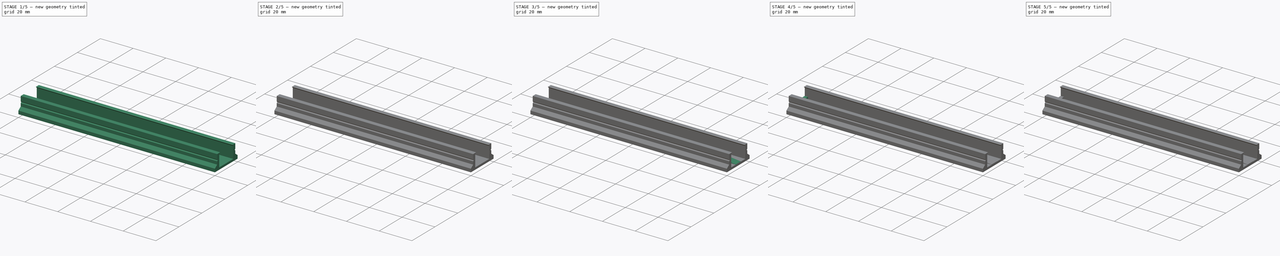
[diagram: build sequence overview — one tinted view per stage of 5, left to right]
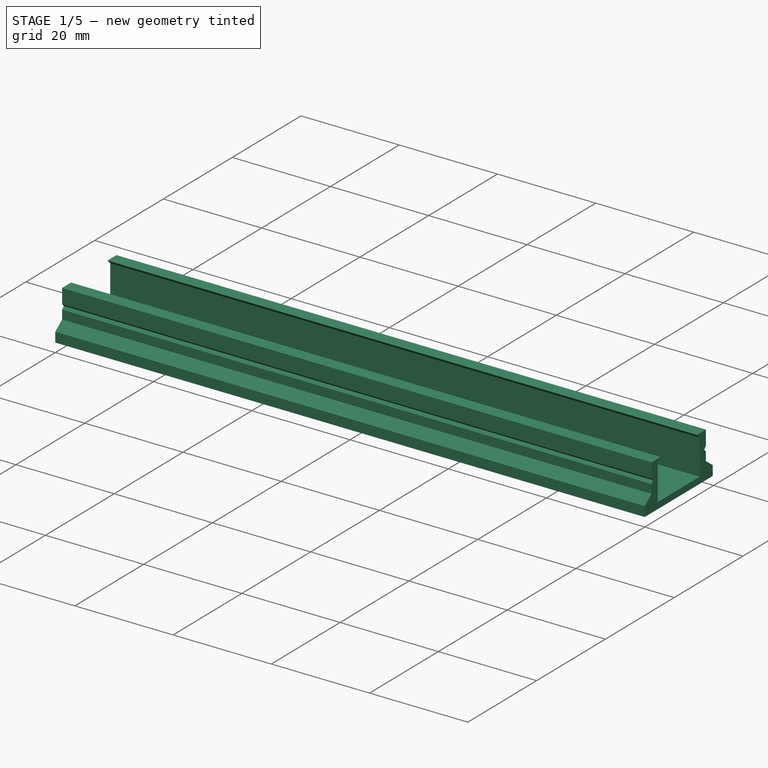
[diagram: stage 1 of 5 — iso view after this stage's code; geometry added in this stage tinted green]
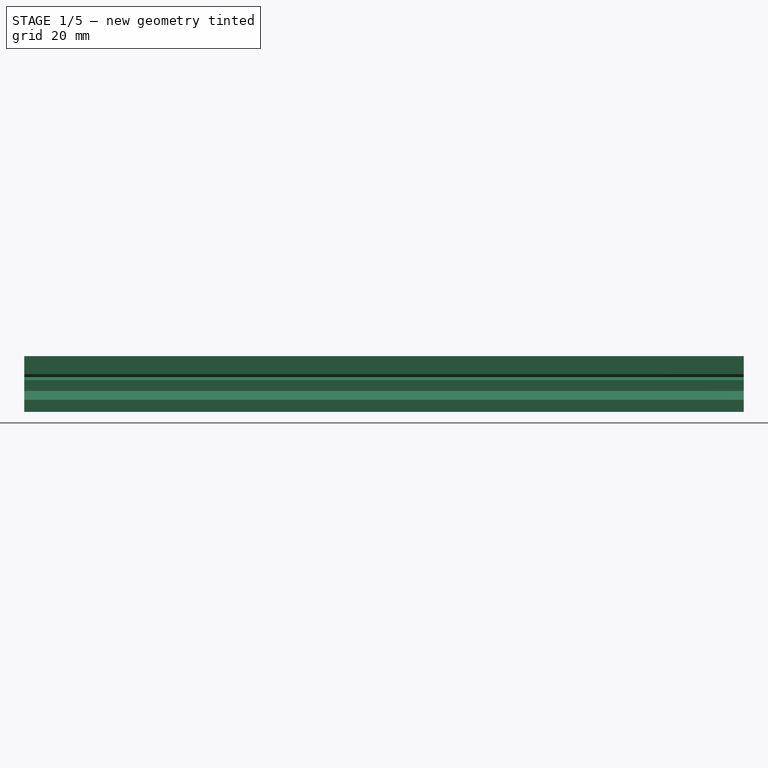
[diagram: stage 1 of 5 — front view after this stage's code; geometry added in this stage tinted green]
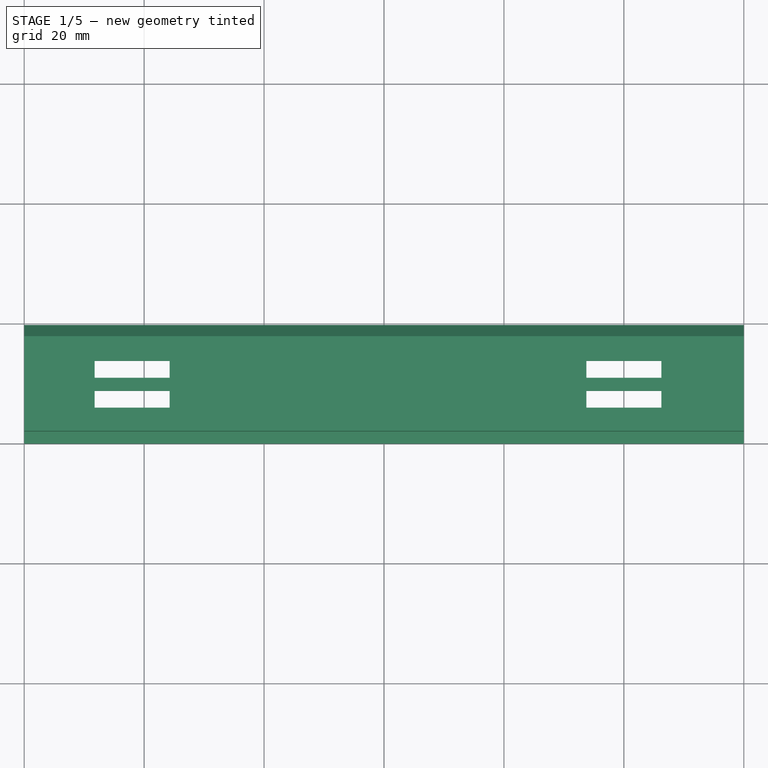
[diagram: stage 1 of 5 — top view after this stage's code; geometry added in this stage tinted green]
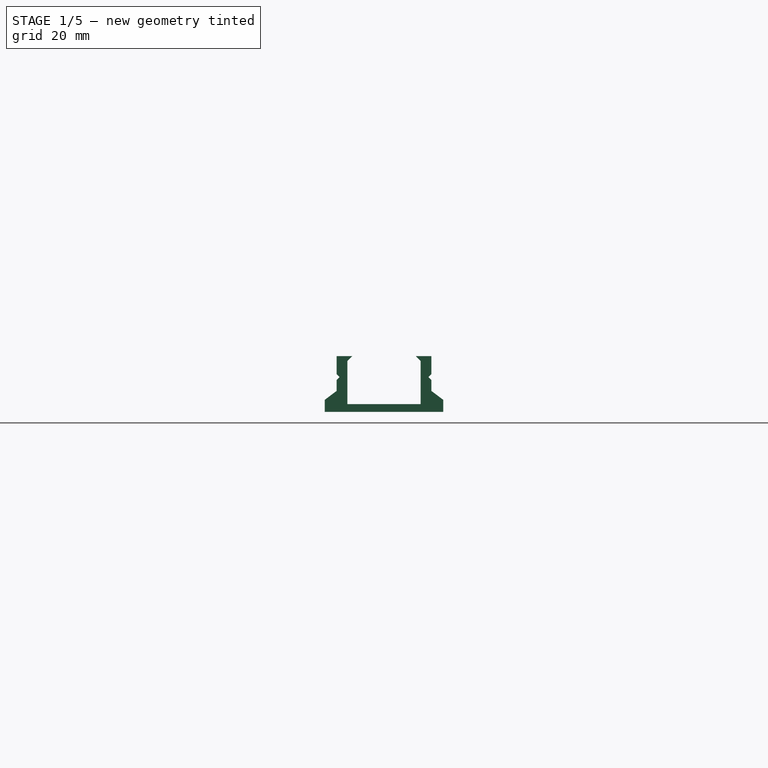
[diagram: stage 1 of 5 — right view after this stage's code; geometry added in this stage tinted green]
FCSTD DOCUMENT  (FreeCAD 1.0R39109 (Git))
Label: Menlu_body_12mm
License: All rights reserved
LicenseURL: https://en.wikipedia.org/wiki/All_rights_reserved
objects: Sketcher::SketchObject×13, PartDesign::Pad×8, PartDesign::Pocket×6, PartDesign::LinearPattern×2, PartDesign::Chamfer×2, PartDesign::Mirrored×1, PartDesign::AdditiveLoft×1, PartDesign::Body×1
note: 84 computed .brp shape members not serialized (recipe doc carries the construction recipe); baked Part::Feature solids carry a one-line shape summary decoded from their .brp

FEATURE [Sketcher::SketchObject] Sketch
  ArcFitTolerance = 1e-06
  AttachmentSupport = -> [YZ_Plane]
  FullyConstrained = true
  MakeInternals = false
  MapMode = 5
  Placement = pos=(0,0,0) rot=(0.57735,0.57735,0.57735;2.0944rad)
  sketch-geometry (12):
    g0: LineSegment StartX=0 StartY=0 StartZ=0 EndX=0 EndY=2 EndZ=0
    g1: LineSegment StartX=0 StartY=2 StartZ=0 EndX=1.99057 EndY=3.5 EndZ=0
    g2: LineSegment StartX=1.99057 StartY=3.5 StartZ=0 EndX=1.99057 EndY=5.3 EndZ=0
    g3: LineSegment StartX=1.99057 StartY=5.3 StartZ=0 EndX=2.49057 EndY=5.8 EndZ=0
    g4: LineSegment StartX=2.49057 StartY=5.8 StartZ=0 EndX=1.99057 EndY=6.3 EndZ=0
    g5: LineSegment StartX=1.99057 StartY=6.3 StartZ=0 EndX=1.99057 EndY=9.3 EndZ=0
    g6: LineSegment StartX=1.99057 StartY=9.3 StartZ=0 EndX=4.59057 EndY=9.3 EndZ=0
    g7: LineSegment StartX=4.59057 StartY=9.3 StartZ=0 EndX=3.79057 EndY=8.5 EndZ=0
    g8: LineSegment StartX=3.79057 StartY=8.5 StartZ=0 EndX=3.79057 EndY=1.3 EndZ=0
    g9: LineSegment StartX=3.79057 StartY=1.3 StartZ=0 EndX=9.89057 EndY=1.3 EndZ=0
    g10: LineSegment StartX=0 StartY=0 StartZ=0 EndX=9.89057 EndY=0 EndZ=0
    g11: LineSegment StartX=9.89057 StartY=1.3 StartZ=0 EndX=9.89057 EndY=0 EndZ=0
  constraints (34):
    c: Coincident(g-1,g0)
    c: PointOnObject(g0,g-2)
    c: Coincident(g0,g1)
    c: Coincident(g1,g2)
    c: Vertical(g2)
    c: Coincident(g2,g3)
    c: Coincident(g3,g4)
    c: Coincident(g4,g5)
    c: Coincident(g5,g6)
    c: Horizontal(g6)
    c: Coincident(g6,g7)
    c: Coincident(g7,g8)
    c: Vertical(g8)
    c: Coincident(g8,g9)
    c: Horizontal(g9)
    c: Coincident(g0,g10)
    c: PointOnObject(g10,g-1)
    c: Vertical(g11)
    c: Coincident(g11,g9)
    c: Coincident(g11,g10)
    c: Distance(g0,g0) = 2
    c: DistanceY(g0,g1) = 1.5
    c: DistanceY(g2,g2) = 1.8
    c: DistanceY(g2,g3) = 0.5
    c: DistanceX(g2,g3) = 0.5
    c: DistanceY(g3,g4) = 0.5
    c: Tangent(g5,g2)
    c: DistanceY(g5,g5) = 3
    c: Distance(g8,g5) = 1.8
    c: Distance(g6,g8) = 0.8
    c: Distance(g7,g6) = 0.8
    c: Distance(g10,g9) = 1.3
    c: DistanceX(g9,g9) = 6.1
    c: Angle(g1,g2) = 0.925025
FEATURE [PartDesign::Pad] Pad
  Direction = (1,0,0)
  Length = 120
  Length2 = 10
  Placement = pos=(0,0,0) rot=(1,1,1;2.0944rad)
  Profile = -> Sketch
  ReferenceAxis = -> Sketch [N_Axis]
  Refine = true
  Suppressed = false
  Type = 0
FEATURE [PartDesign::Mirrored] Mirrored
  BaseFeature = -> Pad
  MirrorPlane = -> Pad [Face11]
  Placement = pos=(0,0,0) rot=(1,1,1;2.0944rad)
  Refine = true
  Suppressed = false
  TransformMode = 1
FEATURE [Sketcher::SketchObject] Sketch001
  ArcFitTolerance = 1e-06
  AttachmentSupport = -> [Mirrored]
  ExternalGeometry = -> [Mirrored]
  FullyConstrained = true
  MakeInternals = false
  MapMode = 5
  Placement = pos=(0,0,0) rot=(0.707107,0.707107,0;3.14159rad)
  sketch-geometry (32):
    g0: LineSegment StartX=1 StartY=24.25 StartZ=0 EndX=1 EndY=11.75 EndZ=0
    g1: LineSegment StartX=1 StartY=11.75 StartZ=0 EndX=3.8 EndY=11.75 EndZ=0
    g2: LineSegment StartX=3.8 StartY=11.75 StartZ=0 EndX=3.8 EndY=24.25 EndZ=0
    g3: LineSegment StartX=3.8 StartY=24.25 StartZ=0 EndX=1 EndY=24.25 EndZ=0
    g4: LineSegment StartX=6 StartY=24.25 StartZ=0 EndX=6 EndY=11.75 EndZ=0
    g5: LineSegment StartX=6 StartY=11.75 StartZ=0 EndX=8.8 EndY=11.75 EndZ=0
    g6: LineSegment StartX=8.8 StartY=11.75 StartZ=0 EndX=8.8 EndY=24.25 EndZ=0
    g7: LineSegment StartX=8.8 StartY=24.25 StartZ=0 EndX=6 EndY=24.25 EndZ=0
    g8: LineSegment StartX=11 StartY=11.75 StartZ=0 EndX=13.8 EndY=11.75 EndZ=0
    g9: LineSegment StartX=13.8 StartY=11.75 StartZ=0 EndX=13.8 EndY=24.25 EndZ=0
    g10: LineSegment StartX=13.8 StartY=24.25 StartZ=0 EndX=11 EndY=24.25 EndZ=0
    g11: LineSegment StartX=11 StartY=24.25 StartZ=0 EndX=11 EndY=11.75 EndZ=0
    g12: LineSegment StartX=1 StartY=106.25 StartZ=0 EndX=1 EndY=93.75 EndZ=0
    g13: LineSegment StartX=1 StartY=93.75 StartZ=0 EndX=3.75 EndY=93.75 EndZ=0
    g14: LineSegment StartX=3.75 StartY=93.75 StartZ=0 EndX=3.75 EndY=106.25 EndZ=0
    g15: LineSegment StartX=3.75 StartY=106.25 StartZ=0 EndX=1 EndY=106.25 EndZ=0
    g16: LineSegment StartX=6 StartY=106.25 StartZ=0 EndX=6 EndY=93.75 EndZ=0
    g17: LineSegment StartX=6 StartY=93.75 StartZ=0 EndX=8.8 EndY=93.75 EndZ=0
    g18: LineSegment StartX=8.8 StartY=93.75 StartZ=0 EndX=8.8 EndY=106.25 EndZ=0
    g19: LineSegment StartX=8.8 StartY=106.25 StartZ=0 EndX=6 EndY=106.25 EndZ=0
    g20: LineSegment StartX=11 StartY=93.75 StartZ=0 EndX=13.8 EndY=93.75 EndZ=0
    g21: LineSegment StartX=13.8 StartY=93.75 StartZ=0 EndX=13.8 EndY=106.25 EndZ=0
    g22: LineSegment StartX=13.8 StartY=106.25 StartZ=0 EndX=11 EndY=106.25 EndZ=0
    g23: LineSegment StartX=11 StartY=106.25 StartZ=0 EndX=11 EndY=93.75 EndZ=0
    g24: LineSegment StartX=16 StartY=11.75 StartZ=0 EndX=18.8 EndY=11.75 EndZ=0
    g25: LineSegment StartX=18.8 StartY=11.75 StartZ=0 EndX=18.8 EndY=24.25 EndZ=0
    g26: LineSegment StartX=18.8 StartY=24.25 StartZ=0 EndX=16 EndY=24.25 EndZ=0
    g27: LineSegment StartX=16 StartY=24.25 StartZ=0 EndX=16 EndY=11.75 EndZ=0
    g28: LineSegment StartX=16 StartY=93.75 StartZ=0 EndX=18.8 EndY=93.75 EndZ=0
    g29: LineSegment StartX=18.8 StartY=93.75 StartZ=0 EndX=18.8 EndY=106.25 EndZ=0
    g30: LineSegment StartX=18.8 StartY=106.25 StartZ=0 EndX=16 EndY=106.25 EndZ=0
    g31: LineSegment StartX=16 StartY=106.25 StartZ=0 EndX=16 EndY=93.75 EndZ=0
  constraints (81):
    c: Coincident(g0,g1)
    c: Coincident(g1,g2)
    c: Coincident(g2,g3)
    c: Coincident(g3,g0)
    c: Vertical(g0)
    c: Vertical(g2)
    c: Horizontal(g1)
    c: Horizontal(g3)
    c: Distance(g3,g3) = 2.8
    c: Distance(g0,g0) = 12.5
    c: Distance(g-1,g1) = 11.75
    c: Distance(g-2,g0) = 1
    c: Coincident(g4,g5)
    c: Coincident(g5,g6)
    c: Coincident(g6,g7)
    c: Coincident(g7,g4)
    c: Vertical(g4)
    c: Vertical(g6)
    c: Tangent(g7,g3)
    c: Tangent(g5,g1)
    c: Distance(g7,g7) = 2.8
    c: Distance(g4,g2) = 2.2
    c: Coincident(g8,g9)
    c: Coincident(g9,g10)
    c: Coincident(g10,g11)
    c: Coincident(g11,g8)
    c: Vertical(g9)
    c: Vertical(g11)
    c: Tangent(g10,g7)
    c: Tangent(g8,g5)
    c: DistanceX(g10,g10) = 2.8
    c: Distance(g11,g6) = 2.2
    c: Coincident(g12,g13)
    c: Coincident(g13,g14)
    c: Coincident(g14,g15)
    c: Coincident(g15,g12)
    c: Vertical(g14)
    c: Horizontal(g13)
    c: Horizontal(g15)
    c: Distance(g15,g15) = 2.75
    c: Distance(g12,g12) = 12.5
    c: Coincident(g16,g17)
    c: Coincident(g17,g18)
    c: Coincident(g18,g19)
    c: Coincident(g19,g16)
    c: Vertical(g16)
    c: Vertical(g18)
    c: Tangent(g19,g15)
    c: Tangent(g17,g13)
    c: Distance(g19,g19) = 2.8
    c: Distance(g16,g14) = 2.25
    c: Coincident(g20,g21)
    c: Coincident(g21,g22)
    c: Coincident(g22,g23)
    c: Coincident(g23,g20)
    c: Vertical(g21)
    c: Vertical(g23)
    c: Tangent(g22,g19)
    c: Tangent(g20,g17)
    c: DistanceX(g22,g22) = 2.8
    c: Distance(g23,g18) = 2.2
    c: Coincident(g24,g25)
    c: Coincident(g25,g26)
    c: Coincident(g26,g27)
    c: Coincident(g27,g24)
    c: Vertical(g25)
    c: Vertical(g27)
    c: Tangent(g24,g8)
    c: Tangent(g26,g10)
    c: DistanceX(g26,g26) = 2.8
    c: Distance(g9,g27) = 2.2
    c: Tangent(g12,g0)
    c: Distance(g13,g3) = 69.5
    c: Coincident(g28,g29)
    c: Coincident(g29,g30)
    c: Coincident(g30,g31)
    c: Coincident(g31,g28)
    c: Tangent(g28,g20)
    c: Tangent(g30,g22)
    c: Tangent(g31,g27)
    c: Tangent(g29,g25)
FEATURE [PartDesign::Pocket] Pocket
  BaseFeature = -> Mirrored
  Direction = (0,0,1)
  Length = 1.3
  Length2 = 5
  Placement = pos=(0,0,0) rot=(1,1,1;2.0944rad)
  Profile = -> Sketch001
  ReferenceAxis = -> Sketch001 [N_Axis]
  Refine = true
  Suppressed = false
  Type = 0
FEATURE [Sketcher::SketchObject] Sketch002
  ArcFitTolerance = 1e-06
  AttachmentSupport = -> [Pocket]
  ExternalGeometry = -> [Pocket]
  FullyConstrained = true
  MakeInternals = false
  MapMode = 5
  Placement = pos=(-3.5e-15,0,0) rot=(0.57735,0.57735,-0.57735;4.18879rad)
  sketch-geometry (8):
    g0: LineSegment StartX=18.1811 StartY=1.21e-14 StartZ=0 EndX=18.8811 EndY=-1 EndZ=0
    g1: LineSegment StartX=18.8811 StartY=-1 StartZ=0 EndX=18.5811 EndY=-1.3 EndZ=0
    g2: LineSegment StartX=18.5811 StartY=-1.3 StartZ=0 EndX=16.1811 EndY=-1.3 EndZ=0
    g3: LineSegment StartX=16.1811 StartY=-1.3 StartZ=0 EndX=15.8811 EndY=-1 EndZ=0
    g4: LineSegment StartX=15.8811 StartY=-1 StartZ=0 EndX=16.5811 EndY=1.11e-14 EndZ=0
    g5: LineSegment StartX=16.5811 StartY=1.11e-14 StartZ=0 EndX=18.1811 EndY=1.21e-14 EndZ=0
    g6: GeomPoint X=17.3811 Y=-1.3 Z=0
    g7: GeomPoint X=17.3811 Y=1.16e-14 Z=0
  constraints (19):
    c: Coincident(g0,g1)
    c: Coincident(g1,g2)
    c: Horizontal(g2)
    c: Coincident(g2,g3)
    c: Coincident(g3,g4)
    c: Coincident(g4,g5)
    c: Coincident(g5,g0)
    c: DistanceX(g5,g5) = 1.6
    c: Distance(g5,g2) = 1.3
    c: DistanceX(g3,g4) = 0.7
    c: DistanceY(g3,g4) = 1
    c: DistanceX(g2,g2) = 2.4
    c: Symmetric(g2,g2,g6)
    c: Symmetric(g5,g5,g7)
    c: Vertical(g6,g7)
    c: Horizontal(g0,g3)
    c: DistanceX(g0,g0) = 0.7
    c: Tangent(g5,g-4)
    c: Distance(g7,g-3) = 2.4
FEATURE [PartDesign::Pocket] Pocket001
  BaseFeature = -> Pocket
  Direction = (1,0,0)
  Length = 5
  Length2 = 5
  Placement = pos=(0,0,0) rot=(1,1,1;2.0944rad)
  Profile = -> Sketch002
  ReferenceAxis = -> Sketch002 [N_Axis]
  Refine = true
  Suppressed = false
  Type = 2
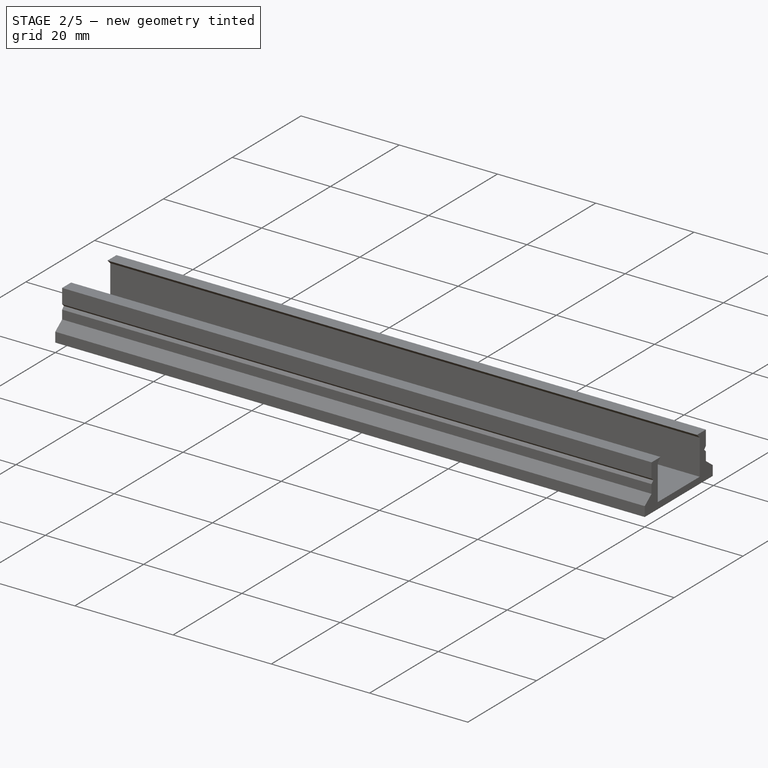
[diagram: stage 2 of 5 — iso view after this stage's code; geometry added in this stage tinted green]
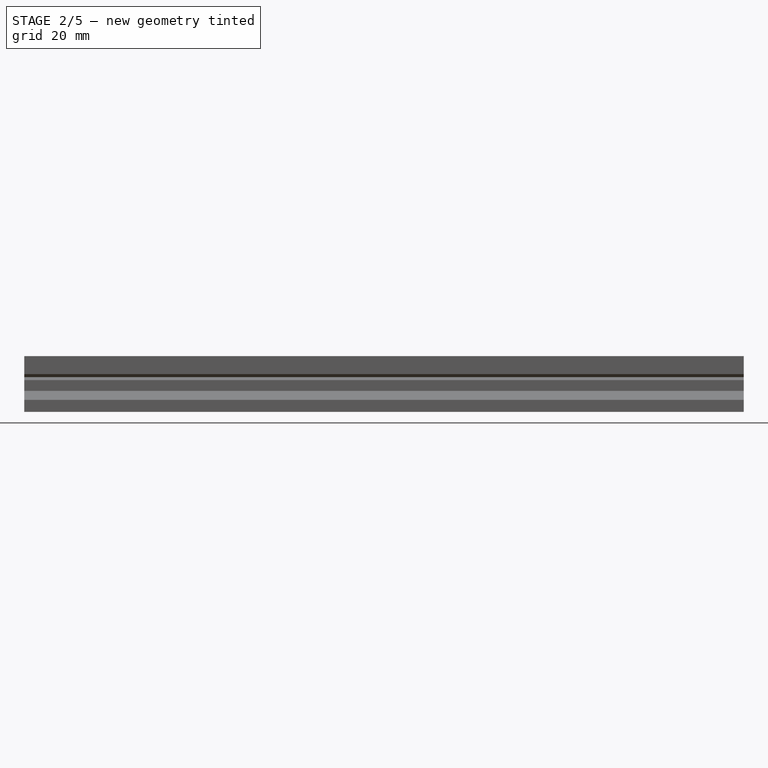
[diagram: stage 2 of 5 — front view after this stage's code; geometry added in this stage tinted green]
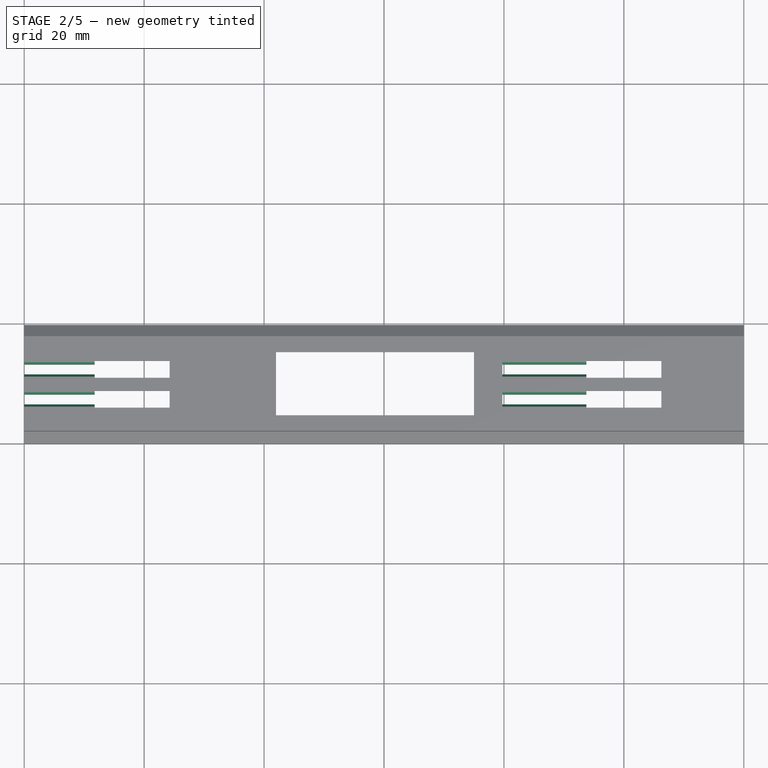
[diagram: stage 2 of 5 — top view after this stage's code; geometry added in this stage tinted green]
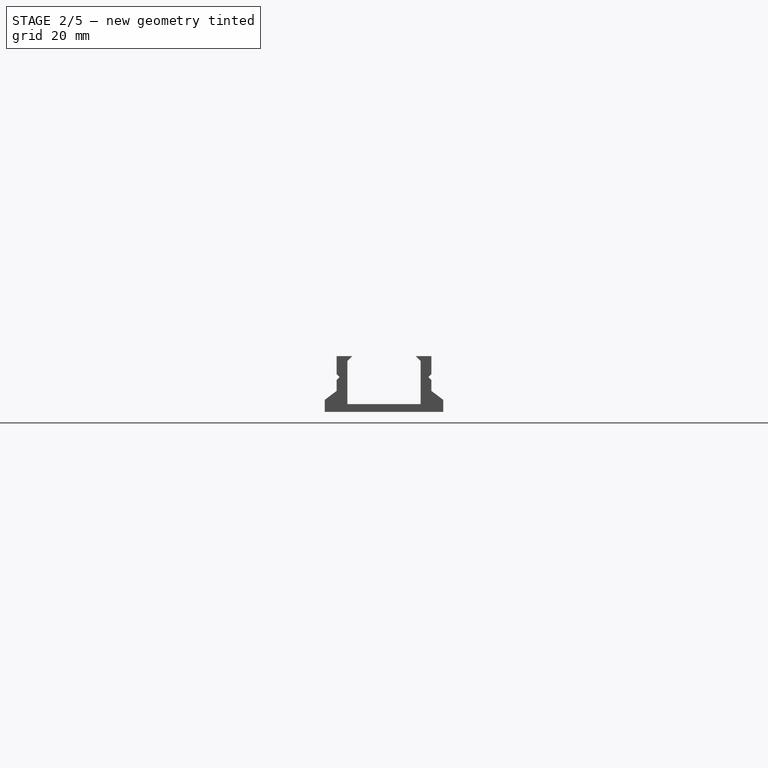
[diagram: stage 2 of 5 — right view after this stage's code; geometry added in this stage tinted green]
FEATURE [Sketcher::SketchObject] Sketch003
  ArcFitTolerance = 1e-06
  AttachmentOffset = pos=(0,0,0) rot=(1,0,0;3.14159rad)
  AttachmentSupport = -> [Pocket001]
  FullyConstrained = true
  MakeInternals = false
  MapMode = 5
  Placement = pos=(93.75,9.1e-13,4.16e-14) rot=(0.57735,0.57735,-0.57735;4.18879rad)
FEATURE [Sketcher::SketchObject] Sketch010
  ArcFitTolerance = 1e-06
  AttachmentSupport = -> [Pocket001]
  ExternalGeometry = -> [Sketch002]
  FullyConstrained = true
  MakeInternals = false
  MapMode = 5
  Placement = pos=(93.75,-5.174e-13,4.16e-14) rot=(0.57735,0.57735,0.57735;2.0944rad)
  sketch-geometry (6):
    g0: LineSegment StartX=15.8811 StartY=1 StartZ=0 EndX=16.5811 EndY=0 EndZ=0
    g1: LineSegment StartX=18.1811 StartY=0 StartZ=0 EndX=18.8811 EndY=1 EndZ=0
    g2: LineSegment StartX=18.5811 StartY=1.3 StartZ=0 EndX=16.1811 EndY=1.3 EndZ=0
    g3: LineSegment StartX=15.8811 StartY=1 StartZ=0 EndX=16.1811 EndY=1.3 EndZ=0
    g4: LineSegment StartX=18.5811 StartY=1.3 StartZ=0 EndX=18.8811 EndY=1 EndZ=0
    g5: LineSegment StartX=18.1811 StartY=0 StartZ=0 EndX=16.5811 EndY=0 EndZ=0
  constraints (12):
    c: Coincident(g0,g-8)
    c: Coincident(g0,g-4)
    c: Coincident(g1,g-5)
    c: Coincident(g1,g-6)
    c: Coincident(g2,g-7)
    c: Coincident(g2,g-8)
    c: Coincident(g3,g0)
    c: Coincident(g3,g-8)
    c: Coincident(g4,g2)
    c: Coincident(g4,g1)
    c: Coincident(g5,g-5)
    c: Coincident(g5,g-4)
FEATURE [PartDesign::Pocket] Pocket004
  BaseFeature = -> Pocket001
  Direction = (-1,5.4e-15,1e-16)
  Length = 14
  Length2 = 5
  Placement = pos=(0,0,0) rot=(1,1,1;2.0944rad)
  Profile = -> Sketch010
  ReferenceAxis = -> Sketch010 [N_Axis]
  Refine = true
  Suppressed = false
  Type = 0
FEATURE [PartDesign::LinearPattern] LinearPattern001
  BaseFeature = -> Pocket004
  Direction = -> Sketch010 [H_Axis]
  Length = 15
  Mode = 0
  Occurrences = 4
  Offset = 5
  Originals = -> [Pocket004]
  Placement = pos=(0,0,0) rot=(1,1,1;2.0944rad)
  Refine = true
  Reversed = true
  Suppressed = false
  TransformMode = 0
FEATURE [PartDesign::LinearPattern] LinearPattern
  BaseFeature = -> LinearPattern001
  Direction = -> Y_Axis
  Length = 15
  Mode = 0
  Occurrences = 4
  Offset = 5
  Originals = -> [Pocket001]
  Placement = pos=(0,0,0) rot=(1,1,1;2.0944rad)
  Refine = true
  Reversed = true
  Suppressed = false
  TransformMode = 0
FEATURE [Sketcher::SketchObject] Sketch004
  ArcFitTolerance = 1e-06
  ExternalGeometry = -> [LinearPattern]
  FullyConstrained = true
  MakeInternals = false
  MapMode = 5
  Placement = pos=(0,0,-4.65e-14) rot=(0.707107,0.707107,0;3.14159rad)
  sketch-geometry (4):
    g0: LineSegment StartX=4.5 StartY=42 StartZ=0 EndX=15.2811 EndY=42 EndZ=0
    g1: LineSegment StartX=15.2811 StartY=42 StartZ=0 EndX=15.2811 EndY=75 EndZ=0
    g2: LineSegment StartX=15.2811 StartY=75 StartZ=0 EndX=4.5 EndY=75 EndZ=0
    g3: LineSegment StartX=4.5 StartY=75 StartZ=0 EndX=4.5 EndY=42 EndZ=0
  constraints (12):
    c: Coincident(g0,g1)
    c: Coincident(g1,g2)
    c: Coincident(g2,g3)
    c: Coincident(g3,g0)
    c: Horizontal(g0)
    c: Horizontal(g2)
    c: Vertical(g1)
    c: Vertical(g3)
    c: Distance(g3,g-2) = 4.5
    c: Distance(g-1,g0) = 42
    c: DistanceY(g3,g3) = 33
    c: Distance(g-3,g1) = 4.5
FEATURE [PartDesign::Pocket] Pocket003
  BaseFeature = -> LinearPattern
  Direction = (-1e-15,-2e-16,1)
  Length = 5
  Length2 = 5
  Placement = pos=(0,0,0) rot=(1,1,1;2.0944rad)
  Profile = -> Sketch004
  ReferenceAxis = -> Sketch004 [N_Axis]
  Refine = true
  Suppressed = false
  Type = 2
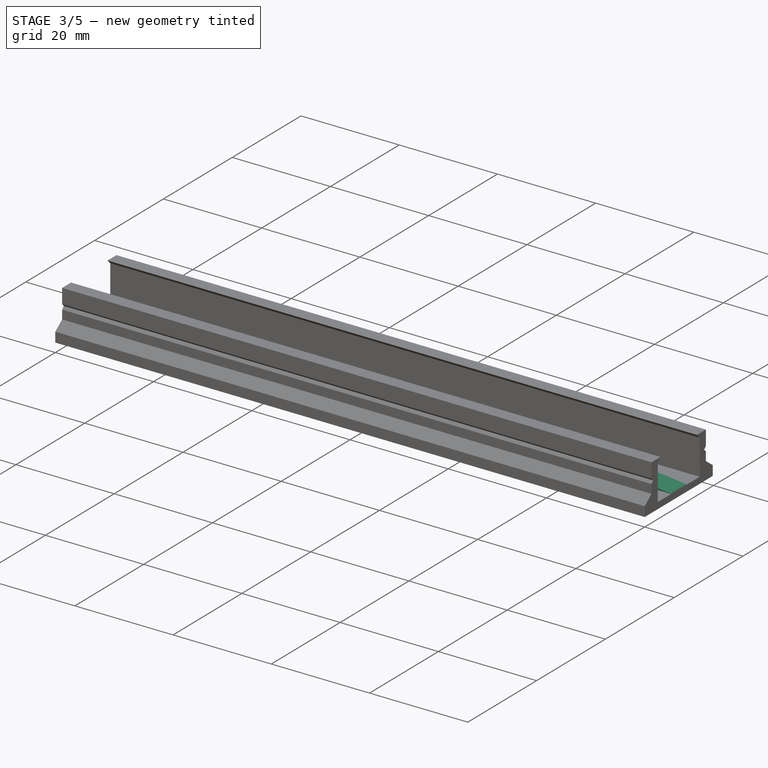
[diagram: stage 3 of 5 — iso view after this stage's code; geometry added in this stage tinted green]
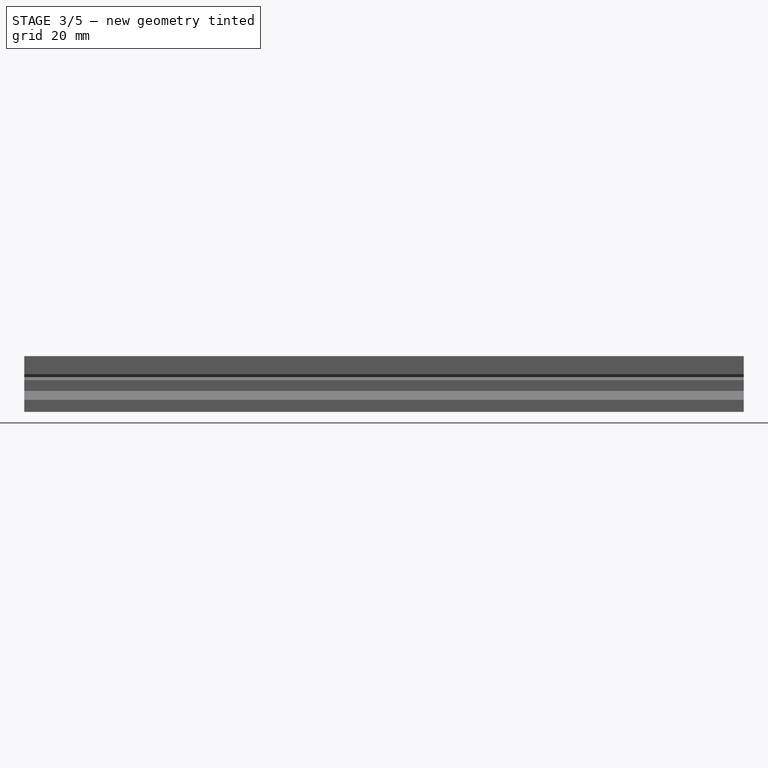
[diagram: stage 3 of 5 — front view after this stage's code; geometry added in this stage tinted green]
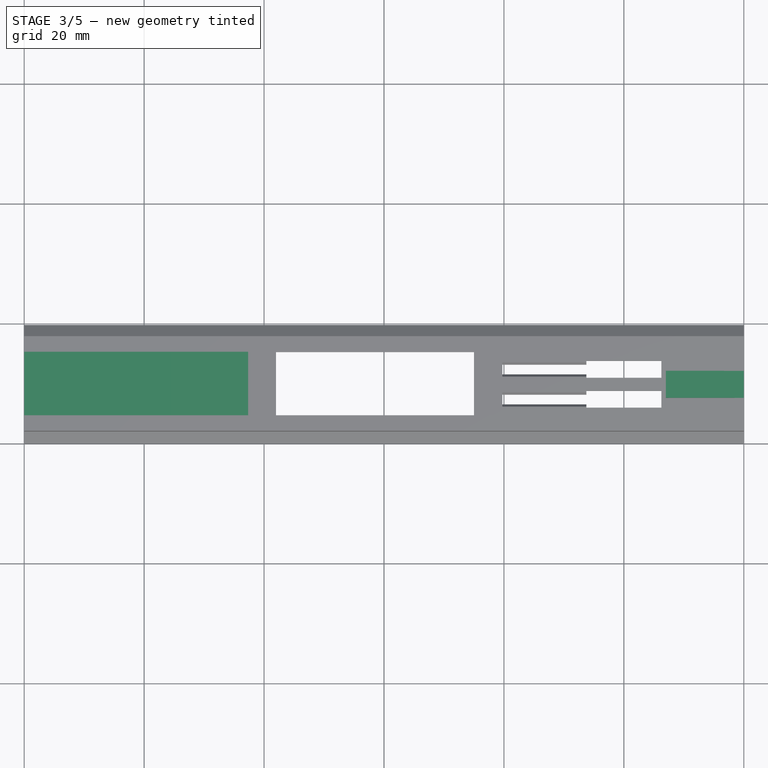
[diagram: stage 3 of 5 — top view after this stage's code; geometry added in this stage tinted green]
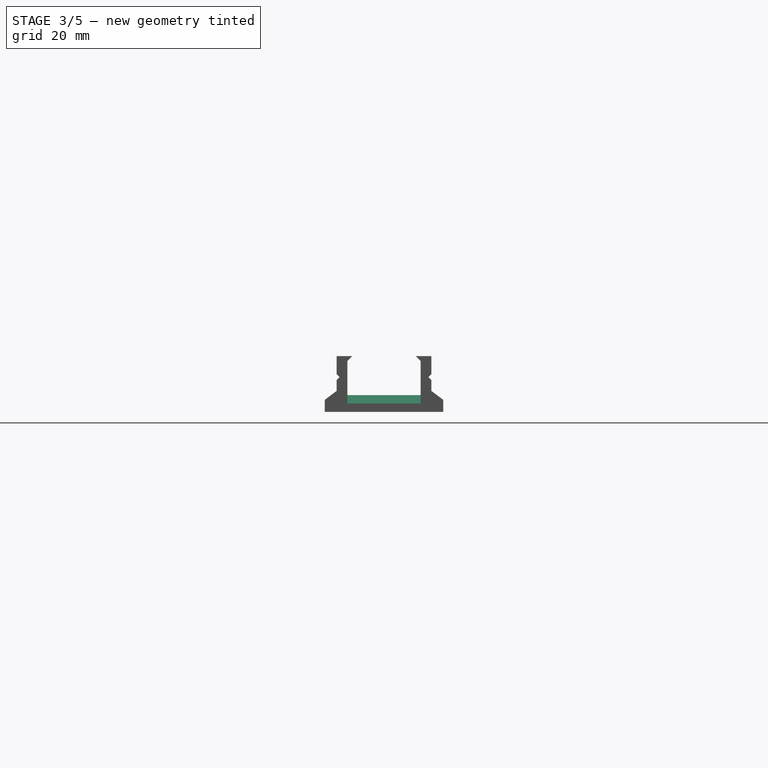
[diagram: stage 3 of 5 — right view after this stage's code; geometry added in this stage tinted green]
FEATURE [Sketcher::SketchObject] Sketch006
  ArcFitTolerance = 1e-06
  ExternalGeometry = -> [Pocket003]
  FullyConstrained = true
  MakeInternals = false
  MapMode = 5
  Placement = pos=(-4e-16,6e-16,1.3) rot=(0,0,-1;1.5708rad)
  sketch-geometry (4):
    g0: LineSegment StartX=-15.9906 StartY=0 StartZ=0 EndX=-3.79057 EndY=0 EndZ=0
    g1: LineSegment StartX=-3.79057 StartY=0 StartZ=0 EndX=-3.79057 EndY=37.35 EndZ=0
    g2: LineSegment StartX=-3.79057 StartY=37.35 StartZ=0 EndX=-15.9906 EndY=37.35 EndZ=0
    g3: LineSegment StartX=-15.9906 StartY=37.35 StartZ=0 EndX=-15.9906 EndY=0 EndZ=0
  constraints (11):
    c: Coincident(g0,g1)
    c: Coincident(g1,g2)
    c: Coincident(g2,g3)
    c: Coincident(g3,g0)
    c: Horizontal(g0)
    c: Horizontal(g2)
    c: Vertical(g1)
    c: Vertical(g3)
    c: Coincident(g0,g-3)
    c: PointOnObject(g1,g-5)
    c: DistanceY(g3,g3) = 37.35
FEATURE [PartDesign::Pad] Pad002
  BaseFeature = -> Pocket003
  Direction = (0,0,1)
  Length = 1.5
  Length2 = 10
  Placement = pos=(0,0,0) rot=(1,1,1;2.0944rad)
  Profile = -> Sketch006
  ReferenceAxis = -> Sketch006 [N_Axis]
  Refine = true
  Suppressed = false
  Type = 0
FEATURE [PartDesign::Chamfer] Chamfer
  Angle = 45
  Base = -> Pad002 [Edge381]
  BaseFeature = -> Pad002
  ChamferType = 1
  FlipDirection = false
  Placement = pos=(0,0,0) rot=(1,1,1;2.0944rad)
  Refine = true
  Size = 12.9
  Size2 = 1.4
  SupportTransform = false
  Suppressed = false
  UseAllEdges = false
FEATURE [Sketcher::SketchObject] Sketch007
  ArcFitTolerance = 1e-06
  AttachmentSupport = -> [Chamfer]
  ExternalGeometry = -> [Chamfer]
  FullyConstrained = true
  MakeInternals = false
  MapMode = 5
  Placement = pos=(-2.2e-15,1.2e-15,1.3) rot=(0,0,-1;1.5708rad)
  sketch-geometry (5):
    g0: GeomPoint [constr] X=-9.89057 Y=120 Z=0
    g1: LineSegment StartX=-12.1406 StartY=120 StartZ=0 EndX=-12.1406 EndY=107 EndZ=0
    g2: LineSegment StartX=-12.1406 StartY=107 StartZ=0 EndX=-7.64057 EndY=107 EndZ=0
    g3: LineSegment StartX=-7.64057 StartY=107 StartZ=0 EndX=-7.64057 EndY=120 EndZ=0
    g4: LineSegment StartX=-7.64057 StartY=120 StartZ=0 EndX=-12.1406 EndY=120 EndZ=0
  constraints (12):
    c: Symmetric(g-4,g-4,g0)
    c: Coincident(g1,g2)
    c: Coincident(g2,g3)
    c: Coincident(g3,g4)
    c: Coincident(g4,g1)
    c: Vertical(g1)
    c: Vertical(g3)
    c: Horizontal(g2)
    c: Horizontal(g4)
    c: Symmetric(g4,g4,g0)
    c: DistanceX(g4,g4) = 4.5
    c: DistanceY(g1,g1) = 13
FEATURE [PartDesign::Pad] Pad003
  BaseFeature = -> Chamfer
  Direction = (-1.7e-15,0,1)
  Length = 1.5
  Length2 = 10
  Placement = pos=(0,0,0) rot=(1,1,1;2.0944rad)
  Profile = -> Sketch007
  ReferenceAxis = -> Sketch007 [N_Axis]
  Refine = true
  Suppressed = false
  Type = 0
FEATURE [PartDesign::Chamfer] Chamfer001
  Angle = 45
  Base = -> Pad003 [Edge381]
  BaseFeature = -> Pad003
  ChamferType = 1
  FlipDirection = false
  Placement = pos=(0,0,0) rot=(1,1,1;2.0944rad)
  Refine = true
  Size = 12.9
  Size2 = 1.4
  SupportTransform = false
  Suppressed = false
  UseAllEdges = false
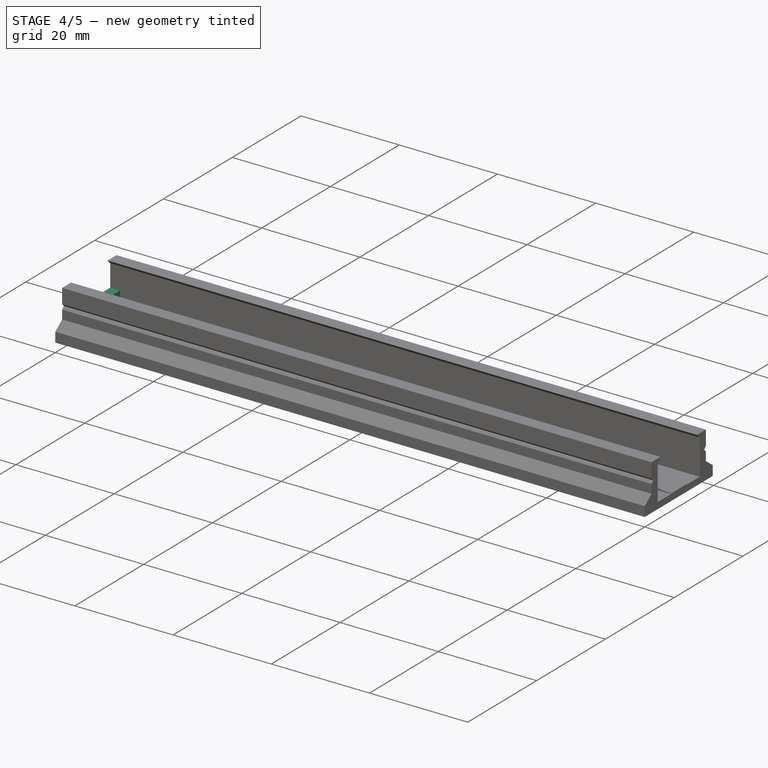
[diagram: stage 4 of 5 — iso view after this stage's code; geometry added in this stage tinted green]
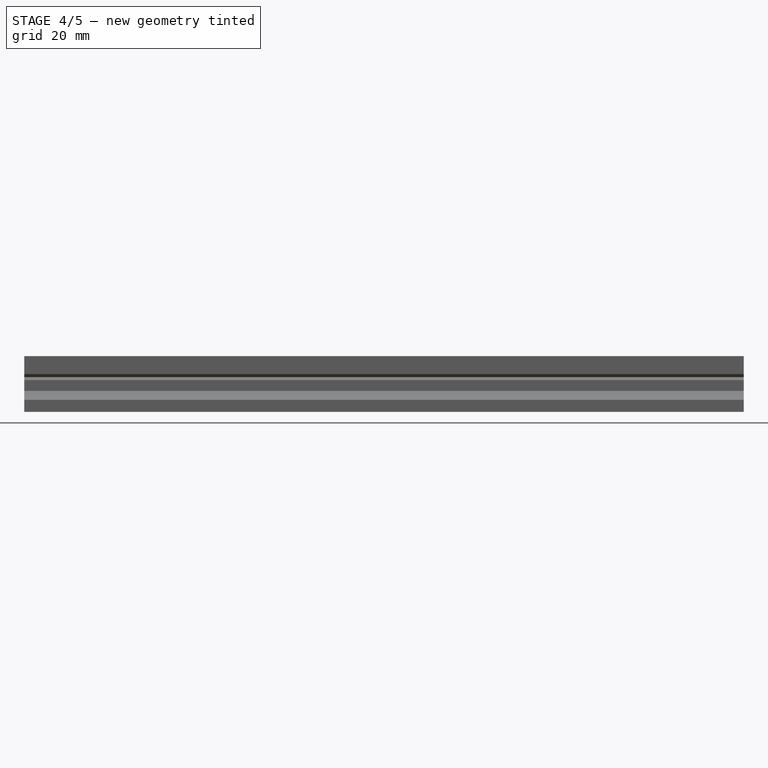
[diagram: stage 4 of 5 — front view after this stage's code; geometry added in this stage tinted green]
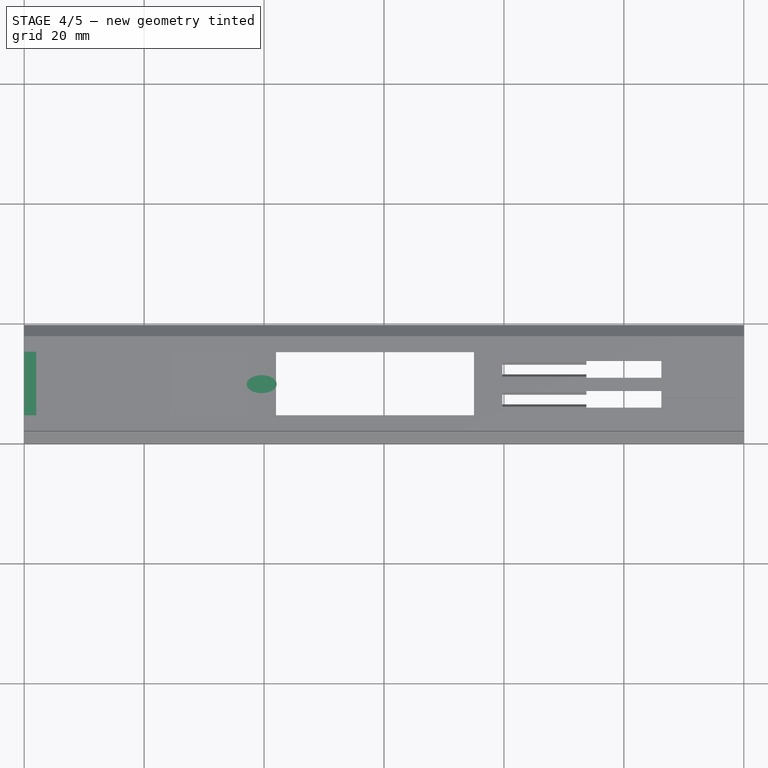
[diagram: stage 4 of 5 — top view after this stage's code; geometry added in this stage tinted green]
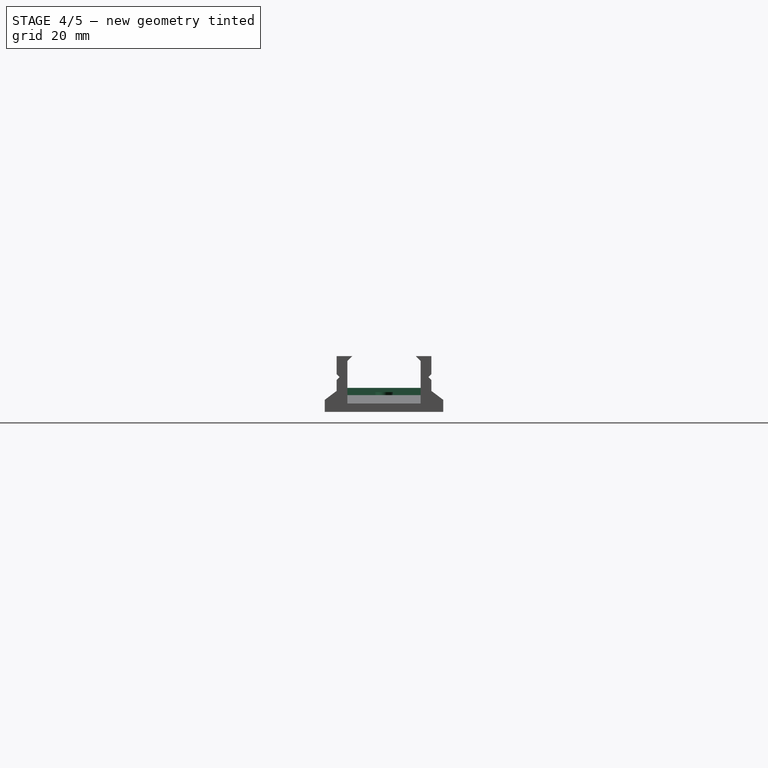
[diagram: stage 4 of 5 — right view after this stage's code; geometry added in this stage tinted green]
FEATURE [Sketcher::SketchObject] Sketch008
  ArcFitTolerance = 1e-06
  AttachmentSupport = -> [Chamfer001]
  ExternalGeometry = -> [Chamfer001]
  FullyConstrained = true
  MakeInternals = false
  MapMode = 5
  Placement = pos=(-1.9e-15,6e-16,2.8) rot=(0,0,-1;1.5708rad)
  sketch-geometry (4):
    g0: LineSegment StartX=-3.3 StartY=9e-16 StartZ=0 EndX=-3.3 EndY=2 EndZ=0
    g1: LineSegment StartX=-3.3 StartY=2 StartZ=0 EndX=-15.9906 EndY=2 EndZ=0
    g2: LineSegment StartX=-15.9906 StartY=2 StartZ=0 EndX=-15.9906 EndY=9e-16 EndZ=0
    g3: LineSegment StartX=-15.9906 StartY=9e-16 StartZ=0 EndX=-3.3 EndY=9e-16 EndZ=0
  constraints (10):
    c: Coincident(g0,g1)
    c: Coincident(g1,g2)
    c: Coincident(g2,g3)
    c: Coincident(g3,g0)
    c: Vertical(g0)
    c: Horizontal(g1)
    c: Horizontal(g3)
    c: Coincident(g0,g-3)
    c: DistanceY(g2,g2) = 2
    c: Tangent(g2,g-4)
FEATURE [PartDesign::Pad] Pad004
  BaseFeature = -> Chamfer001
  Direction = (0,0,1)
  Length = 1.2
  Length2 = 10
  Placement = pos=(0,0,0) rot=(1,1,1;2.0944rad)
  Profile = -> Sketch008
  ReferenceAxis = -> Sketch008 [N_Axis]
  Refine = true
  Suppressed = false
  Type = 0
FEATURE [Sketcher::SketchObject] Sketch005
  ArcFitTolerance = 1e-06
  AttachmentSupport = -> [Pad004]
  ExternalGeometry = -> [Pocket003]
  FullyConstrained = true
  MakeInternals = false
  MapMode = 5
  Placement = pos=(-3e-15,1.5e-15,1.3) rot=(0,0,-1;1.5708rad)
  sketch-geometry (6):
    g0: GeomPoint [constr] X=-9.89057 Y=42 Z=0
    g1: Ellipse CenterX=-9.89057 CenterY=39.6 CenterZ=0 NormalX=0 NormalY=0 NormalZ=1 MajorRadius=2 MinorRadius=1.2 AngleXU=1.5708
    g2: LineSegment [constr] StartX=-9.89057 StartY=41.6 StartZ=0 EndX=-9.89057 EndY=37.6 EndZ=0
    g3: LineSegment [constr] StartX=-11.0906 StartY=39.6 StartZ=0 EndX=-8.69057 EndY=39.6 EndZ=0
    g4: GeomPoint [constr] X=-9.89057 Y=41.2 Z=0
    g5: GeomPoint [constr] X=-9.89057 Y=38 Z=0
  constraints (7):
    c: InternalAlignment(g2-g5 -> g1) x4
    c: Angle(g2) = -1.5708
    c: Distance(g1,g3) = 1.2
    c: Vertical(g1,g0)
    c: DistanceY(g2,g2) = 4
    c: Distance(g2,g-3) = 0.4
    c: Symmetric(g-3,g-3,g0)
FEATURE [Sketcher::SketchObject] Sketch009
  ArcFitTolerance = 1e-06
  AttachmentOffset = pos=(0,0,2) rot=(0,0,1;0rad)
  ExternalGeometry = -> [Sketch005]
  FullyConstrained = true
  MakeInternals = false
  MapMode = 5
  Placement = pos=(0,4e-16,3.3) rot=(0,0,-1;1.5708rad)
  sketch-geometry (5):
    g0: Ellipse CenterX=-9.89057 CenterY=39.6 CenterZ=0 NormalX=0 NormalY=0 NormalZ=1 MajorRadius=2.5 MinorRadius=1.5 AngleXU=-1.5708
    g1: LineSegment [constr] StartX=-9.89057 StartY=37.1 StartZ=0 EndX=-9.89057 EndY=42.1 EndZ=0
    g2: LineSegment [constr] StartX=-8.39057 StartY=39.6 StartZ=0 EndX=-11.3906 EndY=39.6 EndZ=0
    g3: GeomPoint [constr] X=-9.89057 Y=37.6 Z=0
    g4: GeomPoint [constr] X=-9.89057 Y=41.6 Z=0
  constraints (5):
    c: InternalAlignment(g1-g4 -> g0) x4
    c: Coincident(g0,g-3)
    c: DistanceX(g2,g2) = 3
    c: DistanceY(g1,g1) = 5
    c: Vertical(g1)
FEATURE [PartDesign::AdditiveLoft] AdditiveLoft
  BaseFeature = -> Pad004
  Closed = false
  Placement = pos=(0,0,0) rot=(1,1,1;2.0944rad)
  Profile = -> Sketch009
  Refine = true
  Ruled = false
  Sections = -> [Sketch005]
  Suppressed = false
FEATURE [Sketcher::SketchObject] Sketch013
  ArcFitTolerance = 1e-06
  AttachmentSupport = -> [AdditiveLoft]
  ExternalGeometry = -> [AdditiveLoft]
  FullyConstrained = true
  MakeInternals = false
  MapMode = 5
  Placement = pos=(-2.3e-15,1.6e-15,1.3) rot=(0.707107,0.707107,0;3.14159rad)
  sketch-geometry (4):
    g0: LineSegment StartX=1.18113 StartY=93.75 StartZ=0 EndX=3.58113 EndY=93.75 EndZ=0
    g1: LineSegment StartX=3.58113 StartY=93.75 StartZ=0 EndX=3.58113 EndY=106.25 EndZ=0
    g2: LineSegment StartX=3.58113 StartY=106.25 StartZ=0 EndX=1.18113 EndY=106.25 EndZ=0
    g3: LineSegment StartX=1.18113 StartY=106.25 StartZ=0 EndX=1.18113 EndY=93.75 EndZ=0
  constraints (10):
    c: Coincident(g0,g1)
    c: Coincident(g1,g2)
    c: Coincident(g2,g3)
    c: Coincident(g3,g0)
    c: Horizontal(g2)
    c: Vertical(g1)
    c: Vertical(g3)
    c: Coincident(g0,g-4)
    c: PointOnObject(g1,g-5)
    c: Coincident(g0,g-3)
FEATURE [PartDesign::Pad] Pad005
  BaseFeature = -> AdditiveLoft
  Direction = (1,-2e-16,2.7e-15)
  Length = 10
  Length2 = 10
  Placement = pos=(0,0,0) rot=(1,1,1;2.0944rad)
  Profile = -> AdditiveLoft [Face148]
  Refine = true
  Suppressed = false
  Type = 2
FEATURE [PartDesign::Pad] Pad006
  BaseFeature = -> Pad005
  Direction = (1,-2e-16,3e-15)
  Length = 10
  Length2 = 10
  Placement = pos=(0,0,0) rot=(1,1,1;2.0944rad)
  Profile = -> Pad005 [Face150]
  Refine = true
  Suppressed = false
  Type = 2
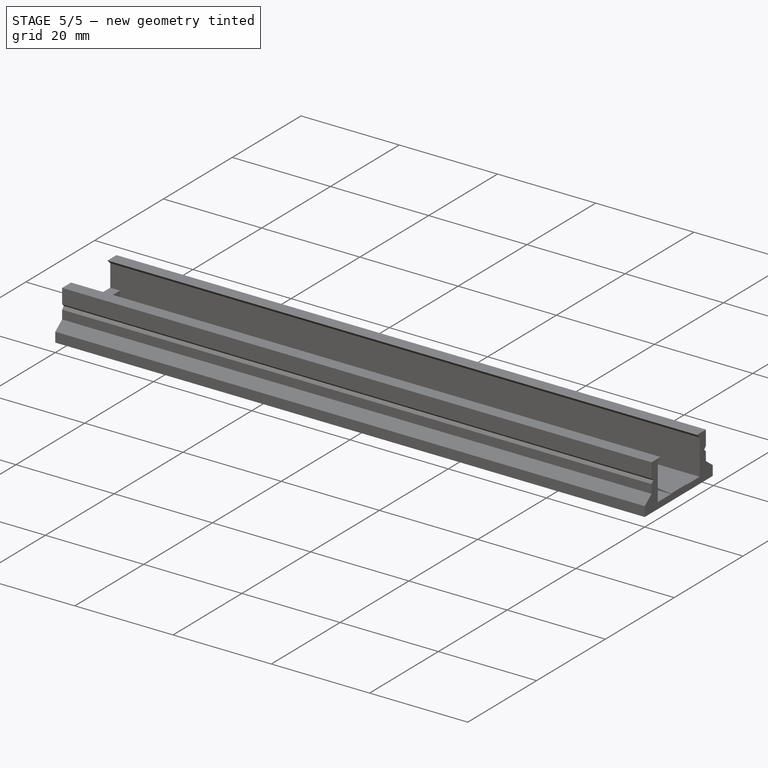
[diagram: stage 5 of 5 — iso view after this stage's code; geometry added in this stage tinted green]
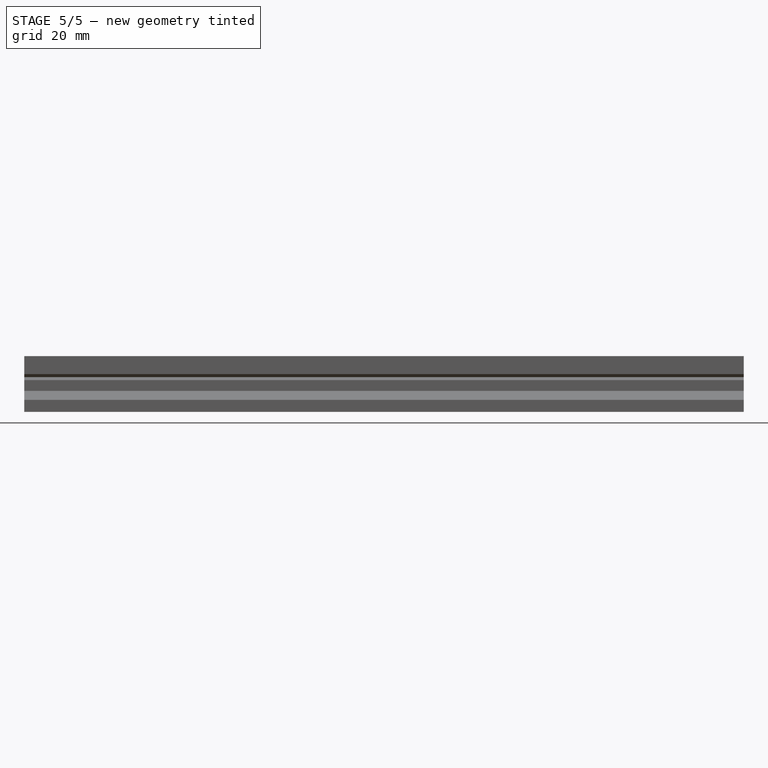
[diagram: stage 5 of 5 — front view after this stage's code; geometry added in this stage tinted green]
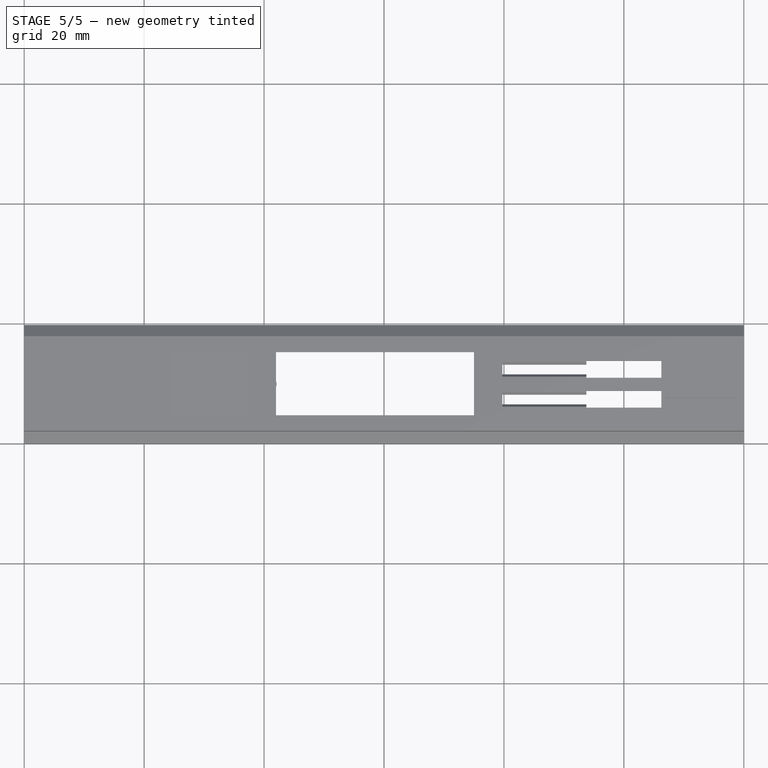
[diagram: stage 5 of 5 — top view after this stage's code; geometry added in this stage tinted green]
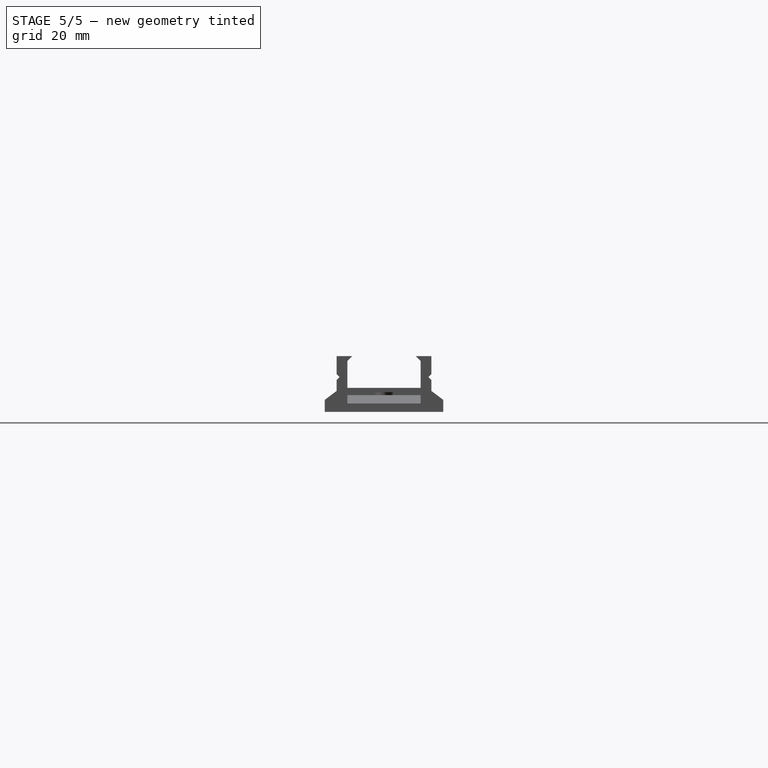
[diagram: stage 5 of 5 — right view after this stage's code; geometry added in this stage tinted green]
FEATURE [PartDesign::Pocket] Pocket005
  BaseFeature = -> Pad006
  Direction = (-1.8e-15,1.2e-15,1)
  Length = 1
  Length2 = 5
  Placement = pos=(0,0,0) rot=(1,1,1;2.0944rad)
  Profile = -> Sketch013
  ReferenceAxis = -> Sketch013 [N_Axis]
  Refine = true
  Suppressed = false
  TaperAngle = -40
  Type = 0
FEATURE [Sketcher::SketchObject] Sketch014
  ArcFitTolerance = 1e-06
  AttachmentSupport = -> [Pocket005]
  ExternalGeometry = -> [Pocket005]
  FullyConstrained = true
  MakeInternals = false
  MapMode = 5
  Placement = pos=(-2e-15,2.1e-15,1.3) rot=(0.707107,0.707107,0;3.14159rad)
  sketch-geometry (4):
    g0: LineSegment StartX=16.1811 StartY=93.75 StartZ=0 EndX=18.5811 EndY=93.75 EndZ=0
    g1: LineSegment StartX=18.5811 StartY=93.75 StartZ=0 EndX=18.5811 EndY=106.25 EndZ=0
    g2: LineSegment StartX=18.5811 StartY=106.25 StartZ=0 EndX=16.1811 EndY=106.25 EndZ=0
    g3: LineSegment StartX=16.1811 StartY=106.25 StartZ=0 EndX=16.1811 EndY=93.75 EndZ=0
  constraints (10):
    c: Coincident(g0,g1)
    c: Coincident(g1,g2)
    c: Coincident(g2,g3)
    c: Coincident(g3,g0)
    c: Horizontal(g2)
    c: Vertical(g1)
    c: Vertical(g3)
    c: Coincident(g0,g-3)
    c: PointOnObject(g1,g-5)
    c: Coincident(g0,g-4)
FEATURE [PartDesign::Pad] Pad007
  BaseFeature = -> Pocket005
  Direction = (1,-5.3e-15,3.7e-15)
  Length = 10
  Length2 = 10
  Placement = pos=(0,0,0) rot=(1,1,1;2.0944rad)
  Profile = -> Pocket005 [Face141]
  Refine = true
  Suppressed = false
  Type = 2
FEATURE [PartDesign::Pad] Pad008
  BaseFeature = -> Pad007
  Direction = (1,-5.3e-15,4e-15)
  Length = 10
  Length2 = 10
  Placement = pos=(0,0,0) rot=(1,1,1;2.0944rad)
  Profile = -> Pad007 [Face144]
  Refine = true
  Suppressed = false
  Type = 2
FEATURE [PartDesign::Pocket] Pocket006
  BaseFeature = -> Pad008
  Direction = (-1.5e-15,1.6e-15,1)
  Length = 1
  Length2 = 5
  Placement = pos=(0,0,0) rot=(1,1,1;2.0944rad)
  Profile = -> Sketch014
  ReferenceAxis = -> Sketch014 [N_Axis]
  Refine = true
  Suppressed = false
  TaperAngle = -40
  Type = 0
FEATURE [PartDesign::Body] Body
  AllowCompound = false
  Group = -> [Sketch,Pad,Mirrored,Sketch001,Pocket,Sketch002,Pocket001,Sketch003,Sketch010,Pocket004,LinearPattern001,LinearPattern,Sketch004,Pocket003,Sketch005,Sketch006,Pad002,Chamfer,Sketch007,Pad003,Chamfer001,Sketch008,Pad004,Sketch009,AdditiveLoft,Sketch013,Pad005,Pad006,Pocket005,Sketch014,Pad007,Pad008,Pocket006]
  Origin = -> Origin
  Tip = -> Pocket006
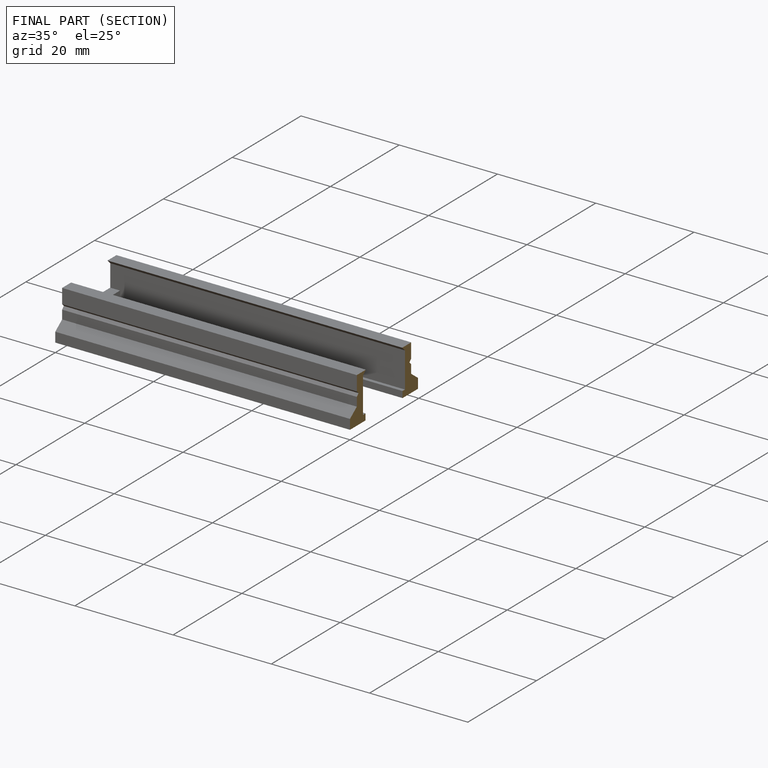
[diagram: finished part — half-section view (interior)]
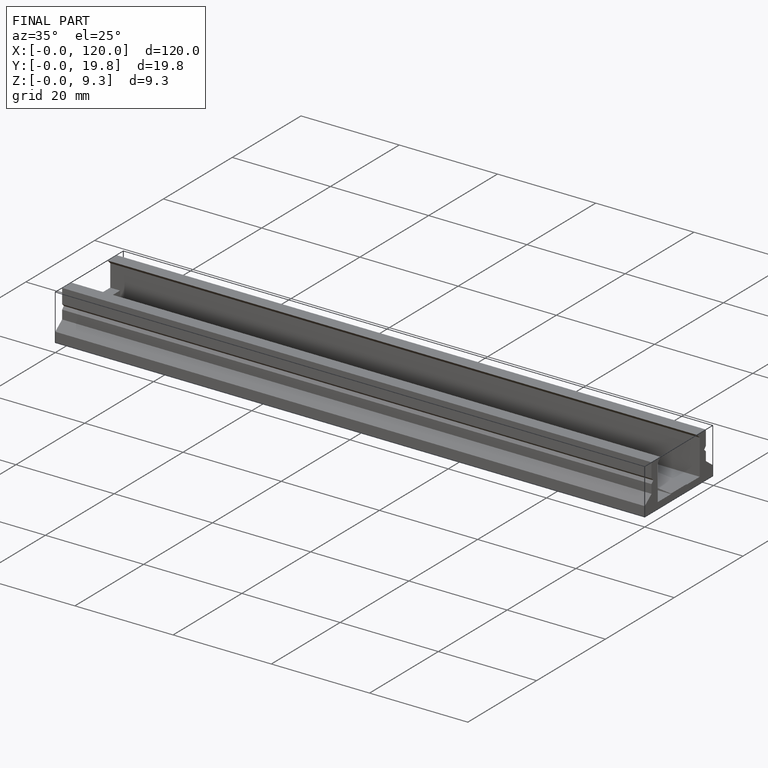
[diagram: finished part — iso view with bounding-box wireframe]
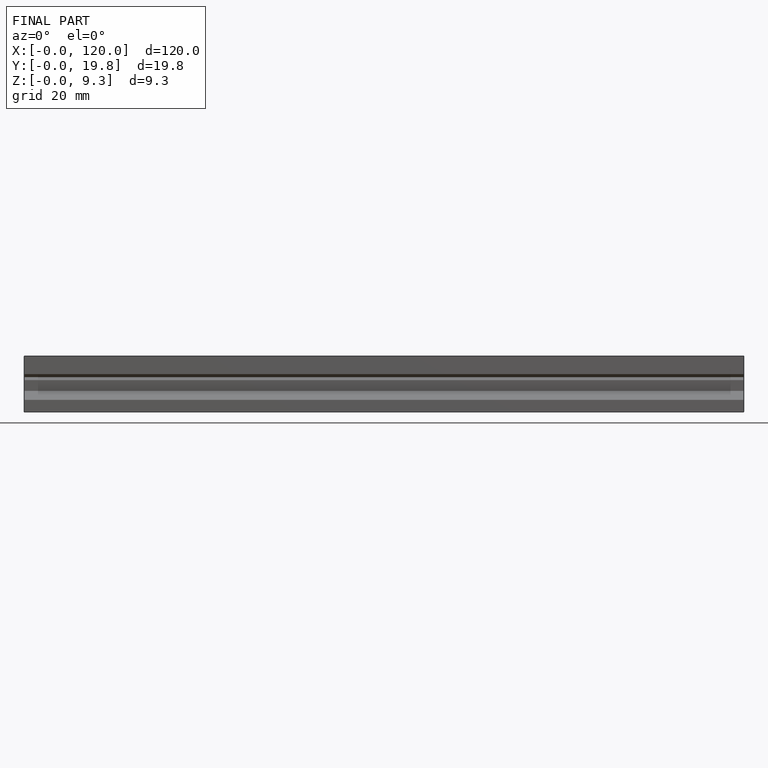
[diagram: finished part — front view with bounding-box wireframe]
